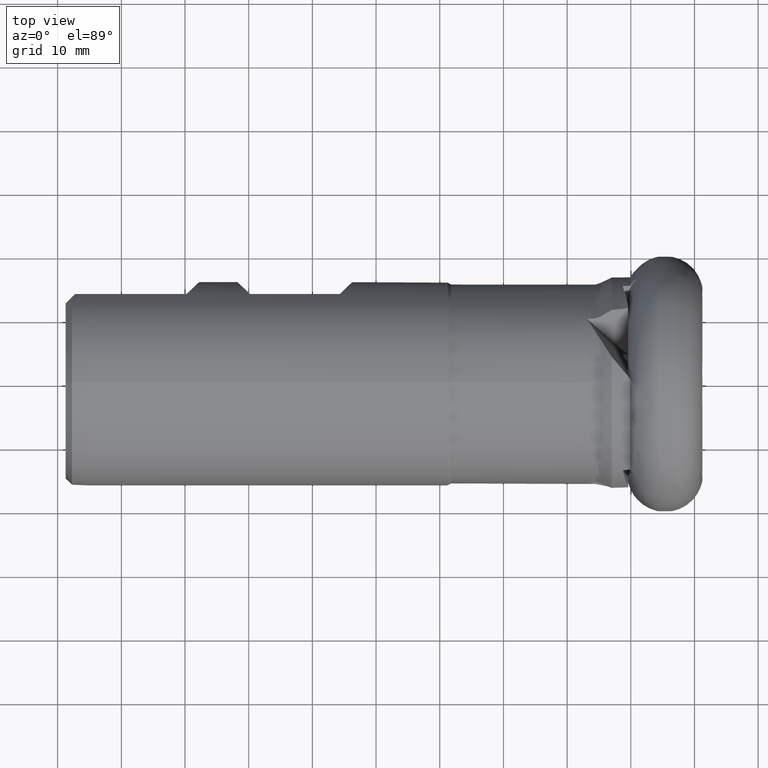
[diagram: clean part render]
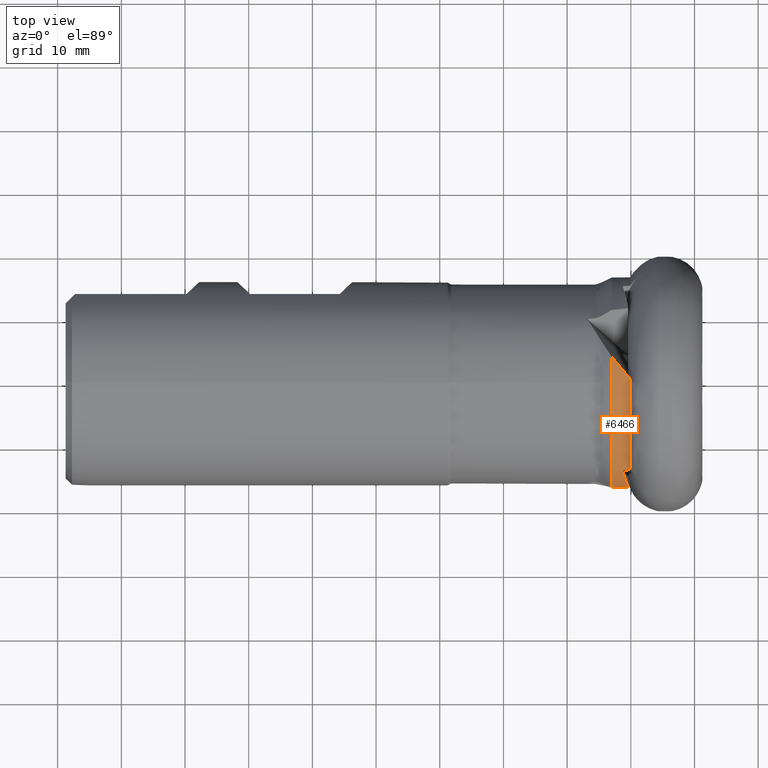
[diagram: same view with one face highlighted and labeled with its STEP entity id]
A machine part, top view. The second image highlights one B-rep face of the part: STEP entity #6466.
In plain terms, the highlighted cylindrical surface (partial cylindrical patch) has radius 16.8 mm, axis along (1, -0, -0).
Its self-contained STEP definition (entity closure, byte-faithful):
#56 = CARTESIAN_POINT ( 'NONE',  ( -12.10968547551563100, 2.883165474550450500, 16.59051172764951300 ) ) ;
#382 = CARTESIAN_POINT ( 'NONE',  ( -10.69129446934944200, -15.78862694130213000, 6.105859432019102900 ) ) ;
#582 = CARTESIAN_POINT ( 'NONE',  ( -12.13968725776800600, -16.35492067858893600, 3.843512793982942500 ) ) ;
#588 = EDGE_CURVE ( 'NONE', #5989, #3148, #4778, .T. ) ;
#612 =( BOUNDED_CURVE ( )  B_SPLINE_CURVE ( 3, ( #6041, #3098, #56, #3601 ),
 .UNSPECIFIED., .F., .F. ) 
 B_SPLINE_CURVE_WITH_KNOTS ( ( 4, 4 ),
 ( 1.981545617319084900, 2.186173678793885700 ),
 .UNSPECIFIED. ) 
 CURVE ( )  GEOMETRIC_REPRESENTATION_ITEM ( )  RATIONAL_B_SPLINE_CURVE ( ( 1.000000000000000000, 0.9965136559314757800, 0.9965136559314757800, 1.000000000000000000 ) ) 
 REPRESENTATION_ITEM ( '' )  );
#614 = VERTEX_POINT ( 'NONE', #1498 ) ;
#643 = CIRCLE ( 'NONE', #3538, 16.80000000000000100 ) ;
#735 = CARTESIAN_POINT ( 'NONE',  ( -10.10000000000000000, 0.5308747688083776900, 16.79161016638495600 ) ) ;
#769 = EDGE_CURVE ( 'NONE', #6070, #3148, #4394, .T. ) ;
#885 = CARTESIAN_POINT ( 'NONE',  ( -11.27317771039960600, -13.72154658264881600, 9.693253291862260900 ) ) ;
#903 = CARTESIAN_POINT ( 'NONE',  ( -10.41030448444720100, -16.29468971593292200, 4.089387125410102200 ) ) ;
#983 = DIRECTION ( 'NONE',  ( 0.0000000000000000000, 0.0000000000000000000, -1.000000000000000000 ) ) ;
#1019 = AXIS2_PLACEMENT_3D ( 'NONE', #2782, #6243, #2756 ) ;
#1068 = CARTESIAN_POINT ( 'NONE',  ( -10.10000000000000000, -13.62530540047514000, 9.828074722130633500 ) ) ;
#1124 = CARTESIAN_POINT ( 'NONE',  ( -11.27641866943514000, -16.32549986218756300, 3.966620129299061500 ) ) ;
#1339 = EDGE_CURVE ( 'NONE', #614, #5343, #612, .T. ) ;
#1498 = CARTESIAN_POINT ( 'NONE',  ( -10.16010389463429000, 0.5989624220435162400, 16.78931934346893200 ) ) ;
#1846 = ORIENTED_EDGE ( 'NONE', *, *, #588, .T. ) ;
#1885 = CARTESIAN_POINT ( 'NONE',  ( -11.27317771039960600, -13.72154658264881600, 9.693253291862260900 ) ) ;
#1923 = CARTESIAN_POINT ( 'NONE',  ( -10.49087130604257600, -13.65760722261550900, 9.783292584825220600 ) ) ;
#2215 = EDGE_CURVE ( 'NONE', #5989, #4762, #2702, .T. ) ;
#2389 = CARTESIAN_POINT ( 'NONE',  ( -10.10000000000000000, -13.62530540047514000, 9.828074722130633500 ) ) ;
#2437 = CARTESIAN_POINT ( 'NONE',  ( -10.10000000000000000, 0.5308747688083776900, 16.79161016638495600 ) ) ;
#2480 = CYLINDRICAL_SURFACE ( 'NONE', #5053, 16.80000000000000100 ) ;
#2674 = ORIENTED_EDGE ( 'NONE', *, *, #1339, .T. ) ;
#2702 =( BOUNDED_CURVE ( )  B_SPLINE_CURVE ( 3, ( #885, #3418, #382, #903 ),
 .UNSPECIFIED., .F., .F. ) 
 B_SPLINE_CURVE_WITH_KNOTS ( ( 4, 4 ),
 ( 4.620962240323358100, 4.990101622798207800 ),
 .UNSPECIFIED. ) 
 CURVE ( )  GEOMETRIC_REPRESENTATION_ITEM ( )  RATIONAL_B_SPLINE_CURVE ( ( 1.000000000000000000, 0.9886768756200045000, 0.9886768756200045000, 1.000000000000000000 ) ) 
 REPRESENTATION_ITEM ( '' )  );
#2756 = DIRECTION ( 'NONE',  ( 0.0000000000000000000, 0.0000000000000000000, -1.000000000000000000 ) ) ;
#2782 = CARTESIAN_POINT ( 'NONE',  ( -10.10000000000000000, 0.0000000000000000000, 0.0000000000000000000 ) ) ;
#2878 = CARTESIAN_POINT ( 'NONE',  ( -10.88193371109705700, -13.68968787657995100, 9.738351743973689500 ) ) ;
#2965 = CARTESIAN_POINT ( 'NONE',  ( 0.0000000000000000000, 0.0000000000000000000, 0.0000000000000000000 ) ) ;
#3000 = EDGE_CURVE ( 'NONE', #4762, #4307, #4422, .T. ) ;
#3098 = CARTESIAN_POINT ( 'NONE',  ( -11.15974160923007100, 1.746153591134100400, 16.74839306247274000 ) ) ;
#3125 = ORIENTED_EDGE ( 'NONE', *, *, #3447, .T. ) ;
#3148 = VERTEX_POINT ( 'NONE', #1068 ) ;
#3418 = CARTESIAN_POINT ( 'NONE',  ( -10.98221298453210100, -14.92108932723232900, 7.995208151383033100 ) ) ;
#3447 = EDGE_CURVE ( 'NONE', #5343, #4307, #643, .T. ) ;
#3499 = DIRECTION ( 'NONE',  ( 0.0000000000000000000, 0.0000000000000000000, -1.000000000000000000 ) ) ;
#3538 = AXIS2_PLACEMENT_3D ( 'NONE', #5826, #4874, #983 ) ;
#3601 = CARTESIAN_POINT ( 'NONE',  ( -12.99999999999999800, 3.998106028385802100, 16.31732662496480300 ) ) ;
#3674 = ORIENTED_EDGE ( 'NONE', *, *, #2215, .F. ) ;
#3787 = ORIENTED_EDGE ( 'NONE', *, *, #769, .F. ) ;
#3980 = DIRECTION ( 'NONE',  ( 1.000000000000000000, -0.0000000000000000000, -0.0000000000000000000 ) ) ;
#4238 = CARTESIAN_POINT ( 'NONE',  ( -10.12016961914821200, 0.5534291330482585800, 16.79089709939598400 ) ) ;
#4281 = CARTESIAN_POINT ( 'NONE',  ( -10.14020405521948300, 0.5761252284186119100, 16.79013406505033100 ) ) ;
#4307 = VERTEX_POINT ( 'NONE', #4972 ) ;
#4394 = CIRCLE ( 'NONE', #1019, 16.80000000000000100 ) ;
#4422 =( BOUNDED_CURVE ( )  B_SPLINE_CURVE ( 3, ( #5594, #1124, #582, #5619 ),
 .UNSPECIFIED., .F., .F. ) 
 B_SPLINE_CURVE_WITH_KNOTS ( ( 4, 4 ),
 ( 1.848508969208417600, 1.871111004302856300 ),
 .UNSPECIFIED. ) 
 CURVE ( )  GEOMETRIC_REPRESENTATION_ITEM ( )  RATIONAL_B_SPLINE_CURVE ( ( 1.000000000000000000, 0.9999574294538696700, 0.9999574294538696700, 1.000000000000000000 ) ) 
 REPRESENTATION_ITEM ( '' )  );
#4762 = VERTEX_POINT ( 'NONE', #6192 ) ;
#4778 =( BOUNDED_CURVE ( )  B_SPLINE_CURVE ( 3, ( #5898, #2878, #1923, #2389 ),
 .UNSPECIFIED., .F., .F. ) 
 B_SPLINE_CURVE_WITH_KNOTS ( ( 4, 4 ),
 ( 4.803815720446019500, 4.813675746606998400 ),
 .UNSPECIFIED. ) 
 CURVE ( )  GEOMETRIC_REPRESENTATION_ITEM ( )  RATIONAL_B_SPLINE_CURVE ( ( 1.000000000000000000, 0.9999918983400846200, 0.9999918983400846200, 1.000000000000000000 ) ) 
 REPRESENTATION_ITEM ( '' )  );
#4867 = CARTESIAN_POINT ( 'NONE',  ( -12.99999999999999800, 3.998106028385802100, 16.31732662496480300 ) ) ;
#4874 = DIRECTION ( 'NONE',  ( 1.000000000000000000, -0.0000000000000000000, -0.0000000000000000000 ) ) ;
#4972 = CARTESIAN_POINT ( 'NONE',  ( -12.99999999999999800, -16.38294840775638400, 3.720080841701238800 ) ) ;
#5033 = FACE_OUTER_BOUND ( 'NONE', #6208, .T. ) ;
#5053 = AXIS2_PLACEMENT_3D ( 'NONE', #2965, #3980, #3499 ) ;
#5237 = B_SPLINE_CURVE_WITH_KNOTS ( 'NONE', 3,
 ( #735, #4238, #4281, #5700 ),
 .UNSPECIFIED., .F., .F.,
 ( 4, 4 ),
 ( 0.005106212171803204200, 0.005195883138877951800 ),
 .UNSPECIFIED. ) ;
#5343 = VERTEX_POINT ( 'NONE', #4867 ) ;
#5594 = CARTESIAN_POINT ( 'NONE',  ( -10.41030448444720100, -16.29468971593292200, 4.089387125410102200 ) ) ;
#5619 = CARTESIAN_POINT ( 'NONE',  ( -12.99999999999999800, -16.38294840775638400, 3.720080841701238800 ) ) ;
#5700 = CARTESIAN_POINT ( 'NONE',  ( -10.16010389463429000, 0.5989624220435162400, 16.78931934346893200 ) ) ;
#5728 = EDGE_CURVE ( 'NONE', #6070, #614, #5237, .T. ) ;
#5826 = CARTESIAN_POINT ( 'NONE',  ( -13.00000000000000000, 0.0000000000000000000, 0.0000000000000000000 ) ) ;
#5898 = CARTESIAN_POINT ( 'NONE',  ( -11.27317771039960600, -13.72154658264881600, 9.693253291862260900 ) ) ;
#5989 = VERTEX_POINT ( 'NONE', #1885 ) ;
#6041 = CARTESIAN_POINT ( 'NONE',  ( -10.16010389463429000, 0.5989624220435162400, 16.78931934346893200 ) ) ;
#6070 = VERTEX_POINT ( 'NONE', #2437 ) ;
#6192 = CARTESIAN_POINT ( 'NONE',  ( -10.41030448444720100, -16.29468971593292200, 4.089387125410102200 ) ) ;
#6208 = EDGE_LOOP ( 'NONE', ( #3674, #1846, #3787, #6305, #2674, #3125, #6389 ) ) ;
#6243 = DIRECTION ( 'NONE',  ( 1.000000000000000000, -0.0000000000000000000, -0.0000000000000000000 ) ) ;
#6305 = ORIENTED_EDGE ( 'NONE', *, *, #5728, .T. ) ;
#6389 = ORIENTED_EDGE ( 'NONE', *, *, #3000, .F. ) ;
#6466 = ADVANCED_FACE ( 'NONE', ( #5033 ), #2480, .T. ) ;